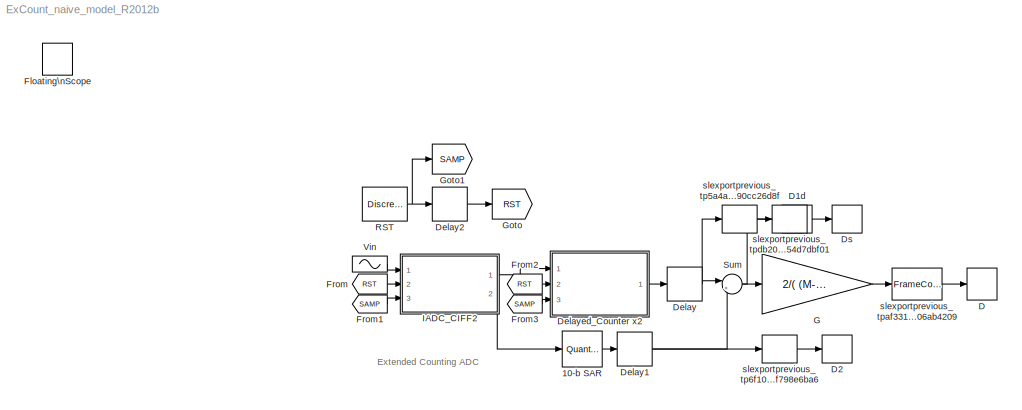
MODEL ExCount_naive_model_R2012b
KIND model
BLOCK [Quantizer] 10-b SAR
  LinearizeAsGain = off
  QuantizationInterval = vfs/1024
  SID = 13159
BLOCK [ToWorkspace] D
  MaxDataPoints = inf
  Ports = [1]
  SID = 13068
  SampleTime = -1
  VariableName = ADCout
BLOCK [ToWorkspace] D1d
  MaxDataPoints = inf
  Ports = [1]
  SID = 13181
  SampleTime = -1
  VariableName = D1d
BLOCK [ToWorkspace] D2
  MaxDataPoints = inf
  Ports = [1]
  SID = 13170
  SampleTime = -1
  VariableName = D2
BLOCK [Delay] Delay
  DelayLength = 1
  InitialCondition = 0
  InputPortMap = u0
  Ports = [1, 1]
  SID = 13179
  SampleTime = Ts*OSR
BLOCK [Delay] Delay1
  DelayLength = 1
  InitialCondition = 0
  InputPortMap = u0
  Ports = [1, 1]
  SID = 13180
  SampleTime = Ts*OSR
BLOCK [Delay] Delay2
  DelayLength = 1
  InitialCondition = 0
  InputPortMap = u0
  Ports = [1, 1]
  SID = 13192
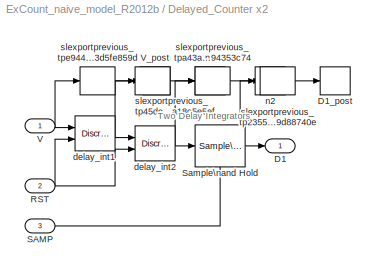
BLOCK [SubSystem] Delayed_Counter x2
  FunctionWithSeparateData = off
  MaskHideContents = off
  MinAlgLoopOccurrences = off
  Opaque = off
  Ports = [3, 1]
  PropExecContextOutsideSubsystem = off
  RTWSystemCode = Auto
  RequestExecContextInheritance = off
  SID = 13048
BLOCK [Outport] Delayed_Counter x2/D1
  IconDisplay = Port number
  SID = 13066
BLOCK [ToWorkspace] Delayed_Counter x2/D1_post
  MaxDataPoints = inf
  Ports = [1]
  SID = 13178
  SampleTime = -1
  VariableName = D1
BLOCK [Inport] Delayed_Counter x2/RST
  IconDisplay = Port number
  Port = 2
  SID = 13050
BLOCK [Inport] Delayed_Counter x2/SAMP
  IconDisplay = Port number
  Port = 3
  SID = 13197
BLOCK [Reference] Delayed_Counter x2/Sample\nand Hold  REF=dspsigops/Sample\nand Hold
  Ports = [1, 1, 0, 1]
  RTWMemSecDataConstants = Inherit from model
  RTWMemSecDataInternal = Inherit from model
  RTWMemSecDataParameters = Inherit from model
  RTWMemSecFuncExecute = Inherit from model
  RTWMemSecFuncInitTerm = Inherit from model
  SID = 13198
  SourceBlock = dspsigops/Sample\nand Hold
  SourceType = Sample and Hold
  initCond = 0
  latchinput = off
  trig = Rising edge
BLOCK [Inport] Delayed_Counter x2/V
  IconDisplay = Port number
  SID = 13049
BLOCK [ToWorkspace] Delayed_Counter x2/V_post
  MaxDataPoints = inf
  Ports = [1]
  SID = 13175
  SampleTime = -1
  VariableName = V
BLOCK [DiscreteFilter] Delayed_Counter x2/delay_int1
  Denominator = [1 -1]
  ExternalReset = Rising
  InputPortMap = u0,r7
  Numerator = [0 1]
  Ports = [2, 1]
  SID = 13173
BLOCK [DiscreteFilter] Delayed_Counter x2/delay_int2
  Denominator = [1 -1]
  ExternalReset = Rising
  InputPortMap = u0,r7
  Numerator = [0 1]
  Ports = [2, 1]
  SID = 13174
BLOCK [ToWorkspace] Delayed_Counter x2/n1
  MaxDataPoints = inf
  Ports = [1]
  SID = 13176
  SampleTime = -1
  VariableName = n1
BLOCK [ToWorkspace] Delayed_Counter x2/n2
  MaxDataPoints = inf
  Ports = [1]
  SID = 13177
  SampleTime = -1
  VariableName = n2
BLOCK [FrameConversion] Delayed_Counter x2/slexportprevious_tp235505b7_d880_4864_8977_523b9d88740e
  OutFrame = Sample-based
  Ports = [1, 1]
  SID = 13208
BLOCK [FrameConversion] Delayed_Counter x2/slexportprevious_tp45dc5b6e_0c89_4657_9d22_12ba18c5e5ef
  OutFrame = Sample-based
  Ports = [1, 1]
  SID = 13210
BLOCK [FrameConversion] Delayed_Counter x2/slexportprevious_tpa43a5871_c6f5_408a_ab27_7e3594353c74
  OutFrame = Sample-based
  Ports = [1, 1]
  SID = 13211
BLOCK [FrameConversion] Delayed_Counter x2/slexportprevious_tpe9443a3a_c5d9_4914_896c_0c93d5fe859d
  OutFrame = Sample-based
  Ports = [1, 1]
  SID = 13209
BLOCK [ToWorkspace] Ds
  MaxDataPoints = inf
  Ports = [1]
  SID = 13183
  SampleTime = -1
  VariableName = Ds
BLOCK [SignalViewerScope] Floating\nScope
  DataFormat = StructureWithTime
  Decimation = 1
  Floating = off
  Grid = on
  IOType = viewer
  LimitDataPoints = on
  MaxDataPoints = 5000
  NumInputPorts = 1
  Ports = []
  SID = 82
  SampleInput = off
  SampleTime = -1
  SaveName = ScopeData
  SaveToWorkspace = off
  ShowLegends = off
  TickLabels = OneTimeTick
  TimeRange = auto
  YMax = 10
  YMin = -10
  ZoomMode = on
BLOCK [From] From
  GotoTag = RST
  SID = 13199
BLOCK [From] From1
  GotoTag = SAMP
  SID = 13201
BLOCK [From] From2
  GotoTag = RST
  SID = 13203
BLOCK [From] From3
  GotoTag = SAMP
  SID = 13204
BLOCK [Gain] G
  Gain = 2/( (M-1)*(M-2) )
  OutDataTypeStr = Inherit: Inherit via internal rule
  ParamDataTypeStr = Inherit: Inherit via internal rule
  SID = 13070
  SaturateOnIntegerOverflow = off
BLOCK [Goto] Goto
  GotoTag = RST
  SID = 13200
BLOCK [Goto] Goto1
  GotoTag = SAMP
  SID = 13202
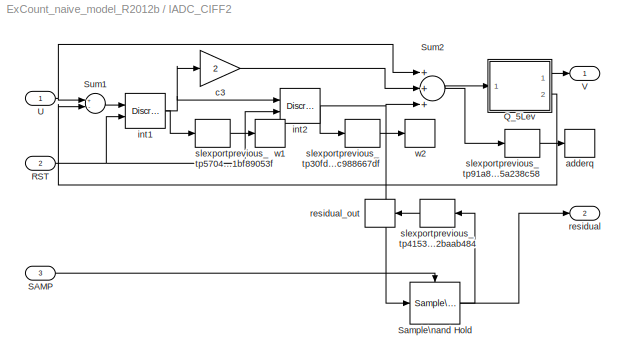
BLOCK [SubSystem] IADC_CIFF2
  FunctionWithSeparateData = off
  MaskHideContents = off
  MinAlgLoopOccurrences = off
  Opaque = off
  Ports = [3, 2]
  PropExecContextOutsideSubsystem = off
  RTWSystemCode = Auto
  RequestExecContextInheritance = off
  SID = 13072
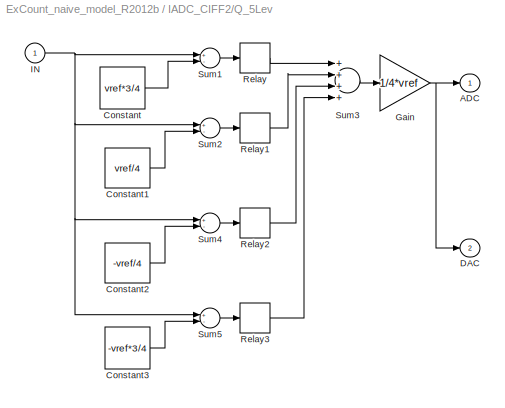
BLOCK [SubSystem] IADC_CIFF2/Q_5Lev
  FunctionWithSeparateData = off
  MaskHideContents = off
  MinAlgLoopOccurrences = off
  Opaque = off
  Ports = [1, 2]
  PropExecContextOutsideSubsystem = off
  RTWSystemCode = Auto
  RequestExecContextInheritance = off
  SID = 13100
BLOCK [Outport] IADC_CIFF2/Q_5Lev/ADC
  IconDisplay = Port number
  SID = 13122
BLOCK [Constant] IADC_CIFF2/Q_5Lev/Constant
  SID = 13102
  Value = vref*3/4
BLOCK [Constant] IADC_CIFF2/Q_5Lev/Constant1
  SID = 13103
  Value = vref/4
BLOCK [Constant] IADC_CIFF2/Q_5Lev/Constant2
  SID = 13104
  Value = -vref/4
BLOCK [Constant] IADC_CIFF2/Q_5Lev/Constant3
  SID = 13105
  Value = -vref*3/4
BLOCK [Outport] IADC_CIFF2/Q_5Lev/DAC
  IconDisplay = Port number
  Port = 2
  SID = 13123
BLOCK [Gain] IADC_CIFF2/Q_5Lev/Gain
  Gain = 1/4*vref
  OutDataTypeStr = Inherit: Inherit via internal rule
  ParamDataTypeStr = Inherit: Inherit via internal rule
  SID = 13106
  SaturateOnIntegerOverflow = off
BLOCK [Inport] IADC_CIFF2/Q_5Lev/IN
  IconDisplay = Port number
  SID = 13101
BLOCK [Relay] IADC_CIFF2/Q_5Lev/Relay
  OffOutputValue = -1
  SID = 13112
  SampleTime = tclk
BLOCK [Relay] IADC_CIFF2/Q_5Lev/Relay1
  OffOutputValue = -1
  SID = 13113
  SampleTime = tclk
BLOCK [Relay] IADC_CIFF2/Q_5Lev/Relay2
  OffOutputValue = -1
  SID = 13114
  SampleTime = tclk
BLOCK [Relay] IADC_CIFF2/Q_5Lev/Relay3
  OffOutputValue = -1
  SID = 13115
  SampleTime = tclk
BLOCK [Sum] IADC_CIFF2/Q_5Lev/Sum1
  Inputs = +-
  Ports = [2, 1]
  SID = 13116
BLOCK [Sum] IADC_CIFF2/Q_5Lev/Sum2
  Inputs = +-
  Ports = [2, 1]
  SID = 13117
BLOCK [Sum] IADC_CIFF2/Q_5Lev/Sum3
  Inputs = ++++
  Ports = [4, 1]
  SID = 13118
BLOCK [Sum] IADC_CIFF2/Q_5Lev/Sum4
  Inputs = +-
  Ports = [2, 1]
  SID = 13119
BLOCK [Sum] IADC_CIFF2/Q_5Lev/Sum5
  Inputs = +-
  Ports = [2, 1]
  SID = 13120
BLOCK [Inport] IADC_CIFF2/RST
  IconDisplay = Port number
  Port = 2
  SID = 13074
BLOCK [Inport] IADC_CIFF2/SAMP
  IconDisplay = Port number
  Port = 3
  SID = 13190
BLOCK [Reference] IADC_CIFF2/Sample\nand Hold  REF=dspsigops/Sample\nand Hold
  Ports = [1, 1, 0, 1]
  RTWMemSecDataConstants = Inherit from model
  RTWMemSecDataInternal = Inherit from model
  RTWMemSecDataParameters = Inherit from model
  RTWMemSecFuncExecute = Inherit from model
  RTWMemSecFuncInitTerm = Inherit from model
  SID = 13186
  SourceBlock = dspsigops/Sample\nand Hold
  SourceType = Sample and Hold
  initCond = 0
  latchinput = off
  trig = Rising edge
BLOCK [Sum] IADC_CIFF2/Sum1
  Inputs = +-
  Ports = [2, 1]
  SID = 13125
BLOCK [Sum] IADC_CIFF2/Sum2
  Inputs = +++
  Ports = [3, 1]
  SID = 13126
BLOCK [Inport] IADC_CIFF2/U
  IconDisplay = Port number
  SID = 13073
BLOCK [Outport] IADC_CIFF2/V
  IconDisplay = Port number
  SID = 13157
BLOCK [ToWorkspace] IADC_CIFF2/adderq
  MaxDataPoints = inf
  Ports = [1]
  SID = 13127
  SampleTime = -1
  VariableName = adderq
BLOCK [Gain] IADC_CIFF2/c3
  Gain = 2
  SID = 13130
BLOCK [DiscreteFilter] IADC_CIFF2/int1
  Denominator = [1 -1]
  ExternalReset = Rising
  InputPortMap = u0,r7
  Numerator = [0 1]
  Ports = [2, 1]
  SID = 13165
BLOCK [DiscreteFilter] IADC_CIFF2/int2
  Denominator = [1 -1]
  ExternalReset = Rising
  InputPortMap = u0,r7
  Numerator = [0 1]
  Ports = [2, 1]
  SID = 13172
BLOCK [Outport] IADC_CIFF2/residual
  IconDisplay = Port number
  Port = 2
  SID = 13158
BLOCK [ToWorkspace] IADC_CIFF2/residual_out
  MaxDataPoints = inf
  Ports = [1]
  SID = 13156
  SampleTime = -1
  VariableName = residual
BLOCK [FrameConversion] IADC_CIFF2/slexportprevious_tp30fd26e6_8090_4d22_86ff_c53c988667df
  OutFrame = Sample-based
  Ports = [1, 1]
  SID = 13216
BLOCK [FrameConversion] IADC_CIFF2/slexportprevious_tp4153c90b_521e_4d4f_bb70_f3d22baab484
  OutFrame = Sample-based
  Ports = [1, 1]
  SID = 13214
BLOCK [FrameConversion] IADC_CIFF2/slexportprevious_tp57044c8b_1919_4ed0_b248_ffb1bf89053f
  OutFrame = Sample-based
  Ports = [1, 1]
  SID = 13215
BLOCK [FrameConversion] IADC_CIFF2/slexportprevious_tp91a8bf55_6e9d_48cf_bc78_44d25a238c58
  OutFrame = Sample-based
  Ports = [1, 1]
  SID = 13213
BLOCK [ToWorkspace] IADC_CIFF2/w1
  MaxDataPoints = inf
  Ports = [1]
  SID = 13144
  SampleTime = -1
  VariableName = w1
BLOCK [ToWorkspace] IADC_CIFF2/w2
  MaxDataPoints = inf
  Ports = [1]
  SID = 13154
  SampleTime = -1
  VariableName = w2
BLOCK [DiscretePulseGenerator] RST
  Period = OSR
  Ports = [0, 1]
  SID = 13160
  SampleTime = tclk
BLOCK [Sum] Sum
  IconShape = round
  InputSameDT = off
  Inputs = |++
  OutDataTypeStr = Inherit: Inherit via internal rule
  Ports = [2, 1]
  SID = 13162
  SaturateOnIntegerOverflow = off
BLOCK [Sin] Vin
  Amplitude = vin_amp
  Frequency = fsig*2*pi
  Ports = [0, 1]
  SID = 13161
  SampleTime = tclk
BLOCK [FrameConversion] slexportprevious_tp5a4a6e99_3524_404b_8fdb_01090cc26d8f
  OutFrame = Sample-based
  Ports = [1, 1]
  SID = 13206
BLOCK [FrameConversion] slexportprevious_tp6f10270c_ac72_4f92_8769_a64f798e6ba6
  OutFrame = Sample-based
  Ports = [1, 1]
  SID = 13207
BLOCK [FrameConversion] slexportprevious_tpaf3315f7_6e1b_448a_8f04_532706ab4209
  OutFrame = Sample-based
  Ports = [1, 1]
  SID = 13205
BLOCK [FrameConversion] slexportprevious_tpdb20fef2_1793_4f8b_81d5_88954d7dbf01
  OutFrame = Sample-based
  Ports = [1, 1]
  SID = 13212
ANNOTATION (root): Extended Counting ADC
ANNOTATION Delayed_Counter x2: Two Delay Integrators
LINE 10-b SAR:1 -> Delay1:1
NET Delay1:1 -> Sum:2, slexportprevious_tp6f10270c_ac72_4f92_8769_a64f798e6ba6:1
LINE Delay2:1 -> Goto:1
NET Delay:1 -> Sum:1, slexportprevious_tp5a4a6e99_3524_404b_8fdb_01090cc26d8f:1
NET Delayed_Counter x2/RST:1 -> Delayed_Counter x2/delay_int1:2, Delayed_Counter x2/delay_int2:2
LINE Delayed_Counter x2/SAMP:1 -> Delayed_Counter x2/Sample\nand Hold:trigger
NET Delayed_Counter x2/Sample\nand Hold:1 -> Delayed_Counter x2/D1:1, Delayed_Counter x2/slexportprevious_tp235505b7_d880_4864_8977_523b9d88740e:1
NET Delayed_Counter x2/V:1 -> Delayed_Counter x2/delay_int1:1, Delayed_Counter x2/slexportprevious_tpe9443a3a_c5d9_4914_896c_0c93d5fe859d:1
NET Delayed_Counter x2/delay_int1:1 -> Delayed_Counter x2/delay_int2:1, Delayed_Counter x2/slexportprevious_tp45dc5b6e_0c89_4657_9d22_12ba18c5e5ef:1
NET Delayed_Counter x2/delay_int2:1 -> Delayed_Counter x2/Sample\nand Hold:1, Delayed_Counter x2/slexportprevious_tpa43a5871_c6f5_408a_ab27_7e3594353c74:1
LINE Delayed_Counter x2/slexportprevious_tp235505b7_d880_4864_8977_523b9d88740e:1 -> Delayed_Counter x2/D1_post:1
LINE Delayed_Counter x2/slexportprevious_tp45dc5b6e_0c89_4657_9d22_12ba18c5e5ef:1 -> Delayed_Counter x2/n1:1
LINE Delayed_Counter x2/slexportprevious_tpa43a5871_c6f5_408a_ab27_7e3594353c74:1 -> Delayed_Counter x2/n2:1
LINE Delayed_Counter x2/slexportprevious_tpe9443a3a_c5d9_4914_896c_0c93d5fe859d:1 -> Delayed_Counter x2/V_post:1
LINE Delayed_Counter x2:1 -> Delay:1
LINE From1:1 -> IADC_CIFF2:3
LINE From2:1 -> Delayed_Counter x2:2
LINE From3:1 -> Delayed_Counter x2:3
LINE From:1 -> IADC_CIFF2:2
LINE G:1 -> slexportprevious_tpaf3315f7_6e1b_448a_8f04_532706ab4209:1
LINE IADC_CIFF2/Q_5Lev/Constant1:1 -> IADC_CIFF2/Q_5Lev/Sum2:2
LINE IADC_CIFF2/Q_5Lev/Constant2:1 -> IADC_CIFF2/Q_5Lev/Sum4:2
LINE IADC_CIFF2/Q_5Lev/Constant3:1 -> IADC_CIFF2/Q_5Lev/Sum5:2
LINE IADC_CIFF2/Q_5Lev/Constant:1 -> IADC_CIFF2/Q_5Lev/Sum1:2
NET IADC_CIFF2/Q_5Lev/Gain:1 -> IADC_CIFF2/Q_5Lev/ADC:1, IADC_CIFF2/Q_5Lev/DAC:1
NET IADC_CIFF2/Q_5Lev/IN:1 -> IADC_CIFF2/Q_5Lev/Sum1:1, IADC_CIFF2/Q_5Lev/Sum2:1, IADC_CIFF2/Q_5Lev/Sum4:1, IADC_CIFF2/Q_5Lev/Sum5:1
LINE IADC_CIFF2/Q_5Lev/Relay1:1 -> IADC_CIFF2/Q_5Lev/Sum3:2
LINE IADC_CIFF2/Q_5Lev/Relay2:1 -> IADC_CIFF2/Q_5Lev/Sum3:3
LINE IADC_CIFF2/Q_5Lev/Relay3:1 -> IADC_CIFF2/Q_5Lev/Sum3:4
LINE IADC_CIFF2/Q_5Lev/Relay:1 -> IADC_CIFF2/Q_5Lev/Sum3:1
LINE IADC_CIFF2/Q_5Lev/Sum1:1 -> IADC_CIFF2/Q_5Lev/Relay:1
LINE IADC_CIFF2/Q_5Lev/Sum2:1 -> IADC_CIFF2/Q_5Lev/Relay1:1
LINE IADC_CIFF2/Q_5Lev/Sum3:1 -> IADC_CIFF2/Q_5Lev/Gain:1
LINE IADC_CIFF2/Q_5Lev/Sum4:1 -> IADC_CIFF2/Q_5Lev/Relay2:1
LINE IADC_CIFF2/Q_5Lev/Sum5:1 -> IADC_CIFF2/Q_5Lev/Relay3:1
LINE IADC_CIFF2/Q_5Lev:1 -> IADC_CIFF2/V:1
LINE IADC_CIFF2/Q_5Lev:2 -> IADC_CIFF2/Sum1:2
NET IADC_CIFF2/RST:1 -> IADC_CIFF2/int1:2, IADC_CIFF2/int2:2
LINE IADC_CIFF2/SAMP:1 -> IADC_CIFF2/Sample\nand Hold:trigger
NET IADC_CIFF2/Sample\nand Hold:1 -> IADC_CIFF2/residual:1, IADC_CIFF2/slexportprevious_tp4153c90b_521e_4d4f_bb70_f3d22baab484:1
LINE IADC_CIFF2/Sum1:1 -> IADC_CIFF2/int1:1
NET IADC_CIFF2/Sum2:1 -> IADC_CIFF2/Q_5Lev:1, IADC_CIFF2/slexportprevious_tp91a8bf55_6e9d_48cf_bc78_44d25a238c58:1
NET IADC_CIFF2/U:1 -> IADC_CIFF2/Sum1:1, IADC_CIFF2/Sum2:1
LINE IADC_CIFF2/c3:1 -> IADC_CIFF2/Sum2:2
NET IADC_CIFF2/int1:1 -> IADC_CIFF2/c3:1, IADC_CIFF2/int2:1, IADC_CIFF2/slexportprevious_tp57044c8b_1919_4ed0_b248_ffb1bf89053f:1
NET IADC_CIFF2/int2:1 -> IADC_CIFF2/Sample\nand Hold:1, IADC_CIFF2/Sum2:3, IADC_CIFF2/slexportprevious_tp30fd26e6_8090_4d22_86ff_c53c988667df:1
LINE IADC_CIFF2/slexportprevious_tp30fd26e6_8090_4d22_86ff_c53c988667df:1 -> IADC_CIFF2/w2:1
LINE IADC_CIFF2/slexportprevious_tp4153c90b_521e_4d4f_bb70_f3d22baab484:1 -> IADC_CIFF2/residual_out:1
LINE IADC_CIFF2/slexportprevious_tp57044c8b_1919_4ed0_b248_ffb1bf89053f:1 -> IADC_CIFF2/w1:1
LINE IADC_CIFF2/slexportprevious_tp91a8bf55_6e9d_48cf_bc78_44d25a238c58:1 -> IADC_CIFF2/adderq:1
LINE IADC_CIFF2:1 -> Delayed_Counter x2:1
LINE IADC_CIFF2:2 -> 10-b SAR:1
NET RST:1 -> Delay2:1, Goto1:1
NET Sum:1 -> G:1, slexportprevious_tpdb20fef2_1793_4f8b_81d5_88954d7dbf01:1
LINE Vin:1 -> IADC_CIFF2:1
LINE slexportprevious_tp5a4a6e99_3524_404b_8fdb_01090cc26d8f:1 -> D1d:1
LINE slexportprevious_tp6f10270c_ac72_4f92_8769_a64f798e6ba6:1 -> D2:1
LINE slexportprevious_tpaf3315f7_6e1b_448a_8f04_532706ab4209:1 -> D:1
LINE slexportprevious_tpdb20fef2_1793_4f8b_81d5_88954d7dbf01:1 -> Ds:1
note: NET lines group one-source signal fan-out (src -> all destinations, sorted); 1:1 wires keep LINE
